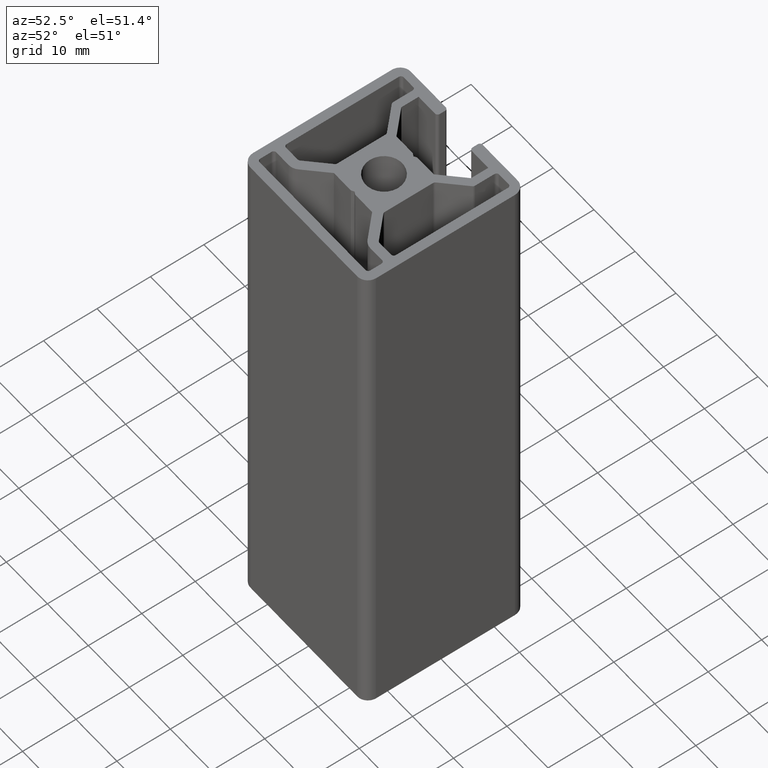
[diagram: clean part render]
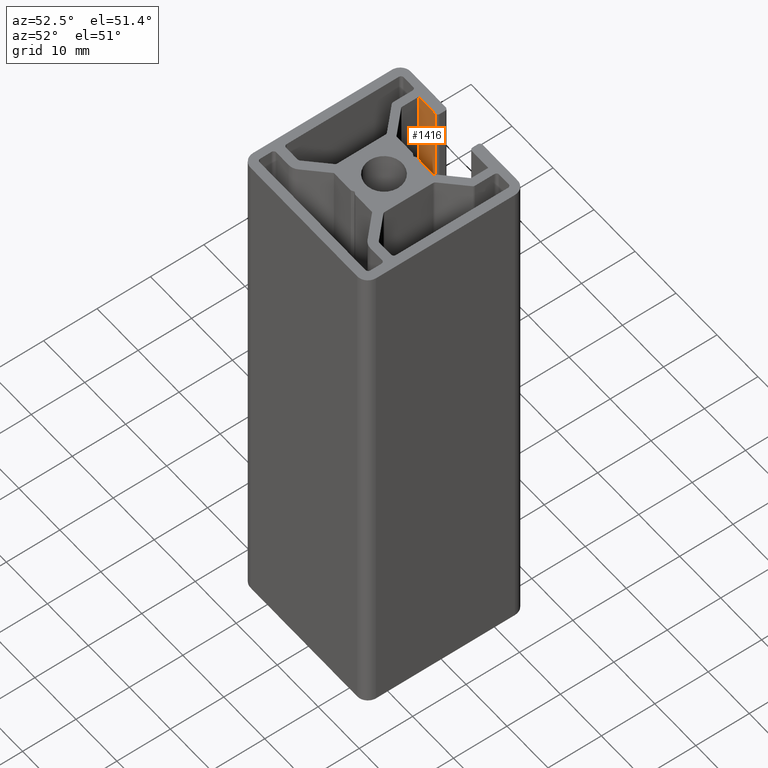
[diagram: same view with one face highlighted and labeled with its STEP entity id]
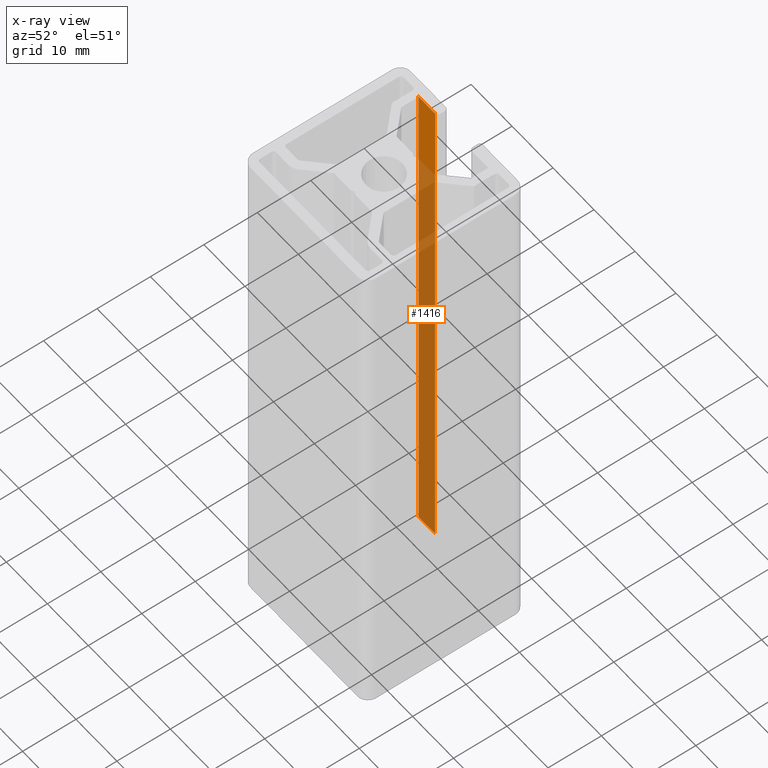
[diagram: x-ray of the same camera — body ghosted, the highlighted face saturated]
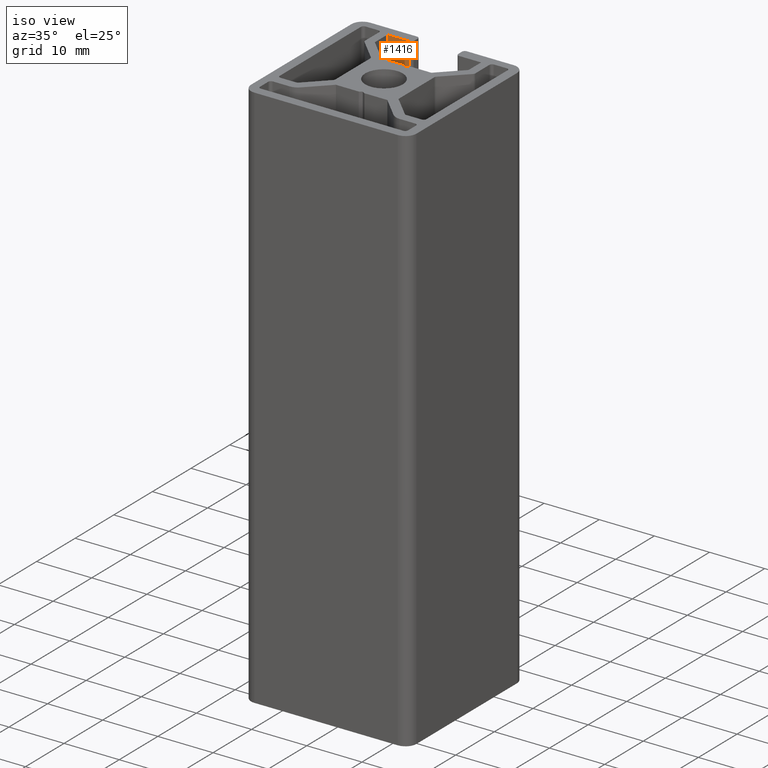
[diagram: same view with one face highlighted and labeled with its STEP entity id]
A machine part, auxiliary view. The second image highlights one B-rep face of the part: STEP entity #1416.
The next image is the same camera in x-ray: the body ghosted, the highlighted face saturated — about 85% of this face is hidden behind the body in this view.
A second angle (iso view) of the same face is appended — the face is thin or edge-on in the first view.
In plain terms, the highlighted planar face has unit normal (0, 1, 0).
Its self-contained STEP definition (entity closure, byte-faithful):
#131=FACE_OUTER_BOUND('',#204,.T.);
#204=EDGE_LOOP('',(#1008,#1009,#1010,#1011));
#314=LINE('',#2143,#468);
#315=LINE('',#2146,#469);
#316=LINE('',#2148,#470);
#317=LINE('',#2149,#471);
#468=VECTOR('',#1716,100.);
#469=VECTOR('',#1719,3.99999997674257);
#470=VECTOR('',#1720,3.99999997674257);
#471=VECTOR('',#1721,100.);
#614=VERTEX_POINT('',#2139);
#615=VERTEX_POINT('',#2141);
#616=VERTEX_POINT('',#2145);
#617=VERTEX_POINT('',#2147);
#776=EDGE_CURVE('',#615,#614,#314,.T.);
#777=EDGE_CURVE('',#614,#616,#315,.T.);
#778=EDGE_CURVE('',#617,#615,#316,.T.);
#779=EDGE_CURVE('',#617,#616,#317,.T.);
#1008=ORIENTED_EDGE('',*,*,#777,.F.);
#1009=ORIENTED_EDGE('',*,*,#776,.F.);
#1010=ORIENTED_EDGE('',*,*,#778,.F.);
#1011=ORIENTED_EDGE('',*,*,#779,.T.);
#1366=PLANE('',#1503);
#1416=ADVANCED_FACE('',(#131),#1366,.F.);
#1503=AXIS2_PLACEMENT_3D('',#2144,#1717,#1718);
#1716=DIRECTION('',(0.,0.,1.));
#1717=DIRECTION('center_axis',(1.72084569817461E-14,1.,0.));
#1718=DIRECTION('ref_axis',(0.,0.,1.));
#1719=DIRECTION('',(1.,-1.72084569817461E-14,0.));
#1720=DIRECTION('',(-1.,1.72084569817461E-14,0.));
#1721=DIRECTION('',(0.,0.,1.));
#2139=CARTESIAN_POINT('',(-8.49999996250913,12.9999999820225,100.));
#2141=CARTESIAN_POINT('',(-8.49999996250913,12.9999999820225,0.));
#2143=CARTESIAN_POINT('',(-8.49999996250913,12.9999999820225,0.));
#2144=CARTESIAN_POINT('Origin',(-8.49999996250913,12.9999999820225,0.));
#2145=CARTESIAN_POINT('',(-4.49999998576656,12.9999999820224,100.));
#2146=CARTESIAN_POINT('',(-4.24999998125445,12.9999999820224,100.));
#2147=CARTESIAN_POINT('',(-4.49999998576656,12.9999999820224,0.));
#2148=CARTESIAN_POINT('',(-4.24999998125445,12.9999999820224,0.));
#2149=CARTESIAN_POINT('',(-4.49999998576656,12.9999999820224,0.));